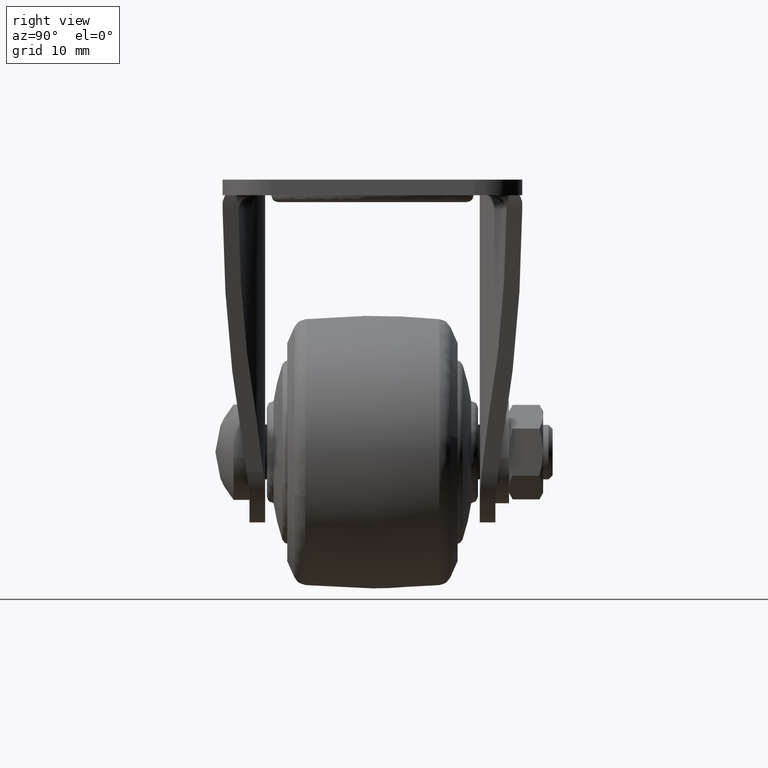
[diagram: clean part render]
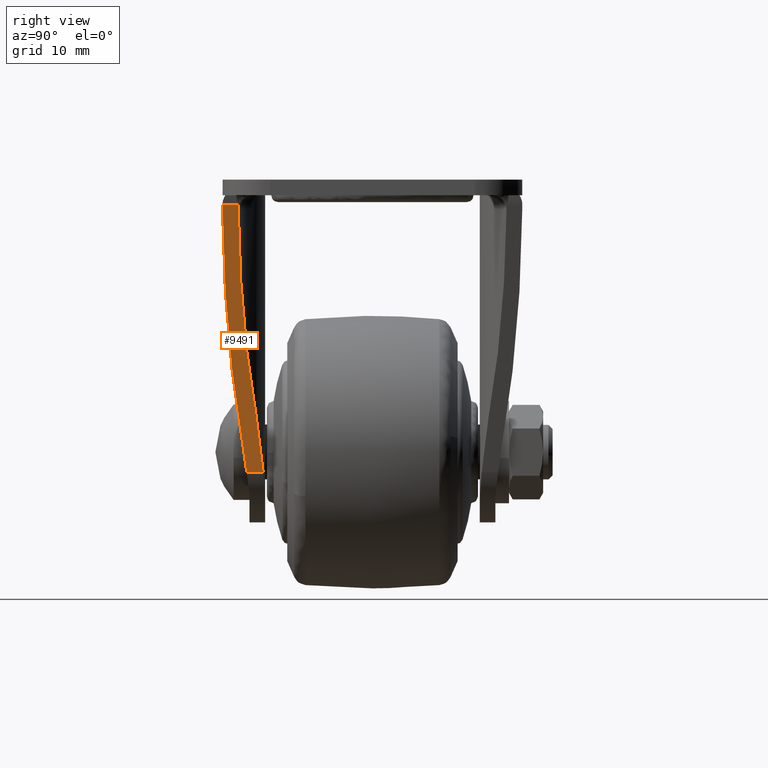
[diagram: same view with one face highlighted and labeled with its STEP entity id]
A machine part, right view. The second image highlights one B-rep face of the part: STEP entity #9491.
In plain terms, the highlighted face is a freeform B-spline surface patch.
Its self-contained STEP definition (entity closure, byte-faithful):
#7017=CARTESIAN_POINT('',(21.346261444899000,-21.989972279407599,-4.499999999999949));
#7018=VERTEX_POINT('',#7017);
#7032=CARTESIAN_POINT('',(21.585738364528449,-21.995973322268298,-3.694098614803045));
#7033=VERTEX_POINT('',#7032);
#7034=CARTESIAN_POINT('',(21.585738364528449,-21.995973322268298,-3.694098614803045));
#7035=CARTESIAN_POINT('',(21.465983044925146,-21.993645605614365,-4.097106044923389));
#7036=CARTESIAN_POINT('',(21.346261444899010,-21.989972279407610,-4.499999999999956));
#7044=(BOUNDED_CURVE()B_SPLINE_CURVE(2,(#7034,#7035,#7036),.UNSPECIFIED.,.F.,.U.)CURVE()GEOMETRIC_REPRESENTATION_ITEM()QUASI_UNIFORM_CURVE()RATIONAL_B_SPLINE_CURVE((1.0,0.999984214065219,1.0))REPRESENTATION_ITEM(''));
#7045=EDGE_CURVE('',#7033,#7018,#7044,.T.);
#7681=CARTESIAN_POINT('',(21.379622105629249,-19.689877114319451,-4.387732802245876));
#7682=VERTEX_POINT('',#7681);
#7683=CARTESIAN_POINT('',(21.585738364528400,-19.563381663769849,-3.694098614803040));
#7684=VERTEX_POINT('',#7683);
#7685=CARTESIAN_POINT('',(21.379622105629249,-19.689877114319451,-4.387732802245876));
#7686=CARTESIAN_POINT('',(21.484812072200938,-19.693190267798570,-4.033741528681206));
#7687=CARTESIAN_POINT('',(21.585738364528400,-19.563381663769849,-3.694098614803040));
#7688=QUASI_UNIFORM_CURVE('',2,(#7685,#7686,#7687),.UNSPECIFIED.,.F.,.U.);
#7689=EDGE_CURVE('',#7682,#7684,#7688,.T.);
#8048=CARTESIAN_POINT('',(21.585738364528400,-19.563381663769849,-3.694098614803040));
#8049=CARTESIAN_POINT('',(21.585738364528449,-21.995973322268298,-3.694098614803045));
#8050=QUASI_UNIFORM_CURVE('',1,(#8048,#8049),.UNSPECIFIED.,.F.,.U.);
#8051=EDGE_CURVE('',#7684,#7033,#8050,.T.);
#9311=CARTESIAN_POINT('',(9.921239207286909,-16.047196290815751,-42.948136302426747));
#9312=VERTEX_POINT('',#9311);
#9330=CARTESIAN_POINT('',(9.921239207286909,-18.451545269507200,-42.948136302426747));
#9331=VERTEX_POINT('',#9330);
#9332=CARTESIAN_POINT('',(9.921239207286909,-16.047196290815751,-42.948136302426747));
#9333=CARTESIAN_POINT('',(9.921239207286909,-18.451545269507200,-42.948136302426747));
#9334=QUASI_UNIFORM_CURVE('',1,(#9332,#9333),.UNSPECIFIED.,.F.,.U.);
#9335=EDGE_CURVE('',#9312,#9331,#9334,.T.);
#9424=CARTESIAN_POINT('',(22.168380142648751,-22.293115045180201,-1.733359280142348));
#9425=CARTESIAN_POINT('',(9.338598054899066,-22.293115045180201,-44.908873531336774));
#9426=CARTESIAN_POINT('',(22.168380142648751,-15.750053823296890,-1.733359280142348));
#9427=CARTESIAN_POINT('',(9.338598054899066,-15.750053823296890,-44.908873531336774));
#9428=B_SPLINE_SURFACE_WITH_KNOTS('',1,1,((#9424,#9426),(#9425,#9427)),.UNSPECIFIED.,.F.,.F.,.U.,(2,2),(2,2),(0.0,45.041406941549191),(0.0,6.543061221883313),.UNSPECIFIED.);
#9429=CARTESIAN_POINT('',(12.296251224727920,-17.037886183437301,-34.955610435312259));
#9430=VERTEX_POINT('',#9429);
#9431=CARTESIAN_POINT('',(21.379622105629242,-19.689877114319469,-4.387732802245876));
#9432=CARTESIAN_POINT('',(16.497324034080151,-19.530518690867666,-20.817920667090572));
#9433=CARTESIAN_POINT('',(12.296251224727950,-17.037886183437301,-34.955610435312167));
#9441=(BOUNDED_CURVE()B_SPLINE_CURVE(2,(#9431,#9432,#9433),.UNSPECIFIED.,.F.,.U.)CURVE()GEOMETRIC_REPRESENTATION_ITEM()QUASI_UNIFORM_CURVE()RATIONAL_B_SPLINE_CURVE((1.0,0.968555908155647,1.0))REPRESENTATION_ITEM(''));
#9442=EDGE_CURVE('',#7682,#9430,#9441,.T.);
#9443=ORIENTED_EDGE('',*,*,#9442,.F.);
#9444=ORIENTED_EDGE('',*,*,#7689,.T.);
#9445=ORIENTED_EDGE('',*,*,#8051,.T.);
#9446=ORIENTED_EDGE('',*,*,#7045,.T.);
#9447=CARTESIAN_POINT('',(11.122622904257661,-19.015914637577950,-38.905171381047552));
#9448=VERTEX_POINT('',#9447);
#9449=CARTESIAN_POINT('',(21.346261444899010,-21.989972279407610,-4.499999999999956));
#9450=CARTESIAN_POINT('',(15.850913853262838,-21.821362735940358,-22.993257066657623));
#9451=CARTESIAN_POINT('',(11.122622904257630,-19.015914637577950,-38.905171381047559));
#9459=(BOUNDED_CURVE()B_SPLINE_CURVE(2,(#9449,#9450,#9451),.UNSPECIFIED.,.F.,.U.)CURVE()GEOMETRIC_REPRESENTATION_ITEM()QUASI_UNIFORM_CURVE()RATIONAL_B_SPLINE_CURVE((1.0,0.968312141452389,1.0))REPRESENTATION_ITEM(''));
#9460=EDGE_CURVE('',#7018,#9448,#9459,.T.);
#9461=ORIENTED_EDGE('',*,*,#9460,.T.);
#9462=CARTESIAN_POINT('',(9.921239207286909,-18.451545269507200,-42.948136302426747));
#9463=CARTESIAN_POINT('',(10.549199182510446,-18.675683778884704,-40.834889586776747));
#9464=CARTESIAN_POINT('',(11.122622904257639,-19.015914637577939,-38.905171381047573));
#9472=(BOUNDED_CURVE()B_SPLINE_CURVE(2,(#9462,#9463,#9464),.UNSPECIFIED.,.F.,.U.)CURVE()GEOMETRIC_REPRESENTATION_ITEM()QUASI_UNIFORM_CURVE()RATIONAL_B_SPLINE_CURVE((1.0,0.995363554429982,1.0))REPRESENTATION_ITEM(''));
#9473=EDGE_CURVE('',#9331,#9448,#9472,.T.);
#9474=ORIENTED_EDGE('',*,*,#9473,.F.);
#9475=ORIENTED_EDGE('',*,*,#9335,.F.);
#9476=CARTESIAN_POINT('',(9.921239207286909,-16.047196290815751,-42.948136302426747));
#9477=CARTESIAN_POINT('',(11.178709888653563,-16.374812728367672,-38.716424263011596));
#9478=CARTESIAN_POINT('',(12.296251224727939,-17.037886183437280,-34.955610435312273));
#9486=(BOUNDED_CURVE()B_SPLINE_CURVE(2,(#9476,#9477,#9478),.UNSPECIFIED.,.F.,.U.)CURVE()GEOMETRIC_REPRESENTATION_ITEM()QUASI_UNIFORM_CURVE()RATIONAL_B_SPLINE_CURVE((1.0,0.990171829139686,1.0))REPRESENTATION_ITEM(''));
#9487=EDGE_CURVE('',#9312,#9430,#9486,.T.);
#9488=ORIENTED_EDGE('',*,*,#9487,.T.);
#9489=EDGE_LOOP('',(#9443,#9444,#9445,#9446,#9461,#9474,#9475,#9488));
#9490=FACE_OUTER_BOUND('',#9489,.T.);
#9491=ADVANCED_FACE('',(#9490),#9428,.T.);